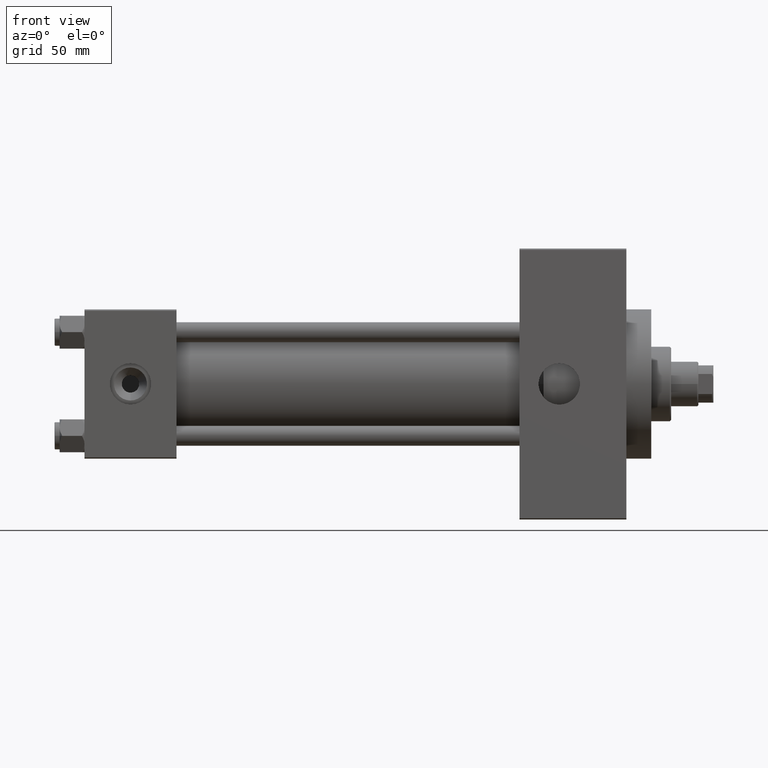
[diagram: clean part render]
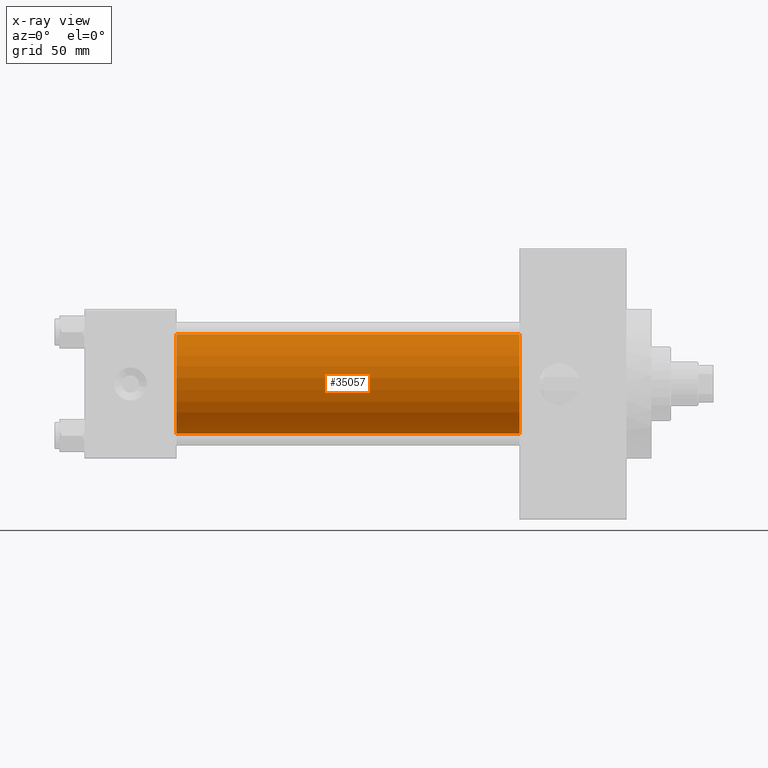
[diagram: x-ray — body ghosted, one internal face saturated and labeled with its STEP entity id]
A machine part, front view, then the same camera in x-ray: the body is ghosted and one INTERNAL B-rep face — a face not visible from any outside direction — is saturated and labeled: STEP entity #35057.
In plain terms, the highlighted cylindrical surface (partial cylindrical patch) has radius 20 mm, axis along (-1, -0, -0).
Its self-contained STEP definition (entity closure, byte-faithful):
#198 = ORIENTED_EDGE ( 'NONE', *, *, #47786, .F. ) ;
#544 = CYLINDRICAL_SURFACE ( 'NONE', #16486, 20.00000000000000000 ) ;
#791 = DIRECTION ( 'NONE',  ( 0.000000000000000000, 0.000000000000000000, -1.000000000000000000 ) ) ;
#1103 = VERTEX_POINT ( 'NONE', #9958 ) ;
#3826 = VERTEX_POINT ( 'NONE', #49047 ) ;
#5043 = CARTESIAN_POINT ( 'NONE',  ( 175.0000000000000284, -2.602085213965210642E-15, 20.00000000000000000 ) ) ;
#5378 = EDGE_CURVE ( 'NONE', #3826, #16292, #42156, .T. ) ;
#5455 = CIRCLE ( 'NONE', #7045, 20.00000000000000000 ) ;
#6551 = EDGE_CURVE ( 'NONE', #16292, #11563, #22927, .T. ) ;
#7045 = AXIS2_PLACEMENT_3D ( 'NONE', #11095, #35109, #791 ) ;
#7145 = CARTESIAN_POINT ( 'NONE',  ( 175.0000000000000284, -1.527916156705042519E-16, -20.00000000000000000 ) ) ;
#9299 = DIRECTION ( 'NONE',  ( -1.000000000000000000, -0.000000000000000000, -0.000000000000000000 ) ) ;
#9551 = LINE ( 'NONE', #5043, #9580 ) ;
#9580 = VECTOR ( 'NONE', #9299, 1000.000000000000000 ) ;
#9958 = CARTESIAN_POINT ( 'NONE',  ( 37.00000000000000000, -2.602085213965210642E-15, 20.00000000000000000 ) ) ;
#10977 = AXIS2_PLACEMENT_3D ( 'NONE', #31725, #39984, #27468 ) ;
#11095 = CARTESIAN_POINT ( 'NONE',  ( 37.00000000000000000, -2.602085213965210642E-15, 0.000000000000000000 ) ) ;
#11563 = VERTEX_POINT ( 'NONE', #34713 ) ;
#12930 = EDGE_CURVE ( 'NONE', #1103, #11563, #5455, .T. ) ;
#15847 = CARTESIAN_POINT ( 'NONE',  ( 175.0000000000000284, -2.602085213965210642E-15, 0.000000000000000000 ) ) ;
#16292 = VERTEX_POINT ( 'NONE', #32534 ) ;
#16486 = AXIS2_PLACEMENT_3D ( 'NONE', #15847, #41617, #31115 ) ;
#16737 = ORIENTED_EDGE ( 'NONE', *, *, #12930, .F. ) ;
#17389 = EDGE_LOOP ( 'NONE', ( #17504, #25142, #16737, #198 ) ) ;
#17504 = ORIENTED_EDGE ( 'NONE', *, *, #5378, .T. ) ;
#22927 = LINE ( 'NONE', #7145, #45371 ) ;
#25142 = ORIENTED_EDGE ( 'NONE', *, *, #6551, .T. ) ;
#27468 = DIRECTION ( 'NONE',  ( 0.000000000000000000, 0.000000000000000000, -1.000000000000000000 ) ) ;
#30858 = FACE_OUTER_BOUND ( 'NONE', #17389, .T. ) ;
#31115 = DIRECTION ( 'NONE',  ( 0.000000000000000000, 0.000000000000000000, 1.000000000000000000 ) ) ;
#31725 = CARTESIAN_POINT ( 'NONE',  ( 175.0000000000000284, -2.602085213965210642E-15, 0.000000000000000000 ) ) ;
#32534 = CARTESIAN_POINT ( 'NONE',  ( 175.0000000000000284, -1.527916156705042519E-16, -20.00000000000000000 ) ) ;
#33951 = DIRECTION ( 'NONE',  ( -1.000000000000000000, -0.000000000000000000, -0.000000000000000000 ) ) ;
#34713 = CARTESIAN_POINT ( 'NONE',  ( 37.00000000000000000, -1.527916156705042519E-16, -20.00000000000000000 ) ) ;
#35057 = ADVANCED_FACE ( 'NONE', ( #30858 ), #544, .F. ) ;
#35109 = DIRECTION ( 'NONE',  ( 1.000000000000000000, 0.000000000000000000, 0.000000000000000000 ) ) ;
#39984 = DIRECTION ( 'NONE',  ( 1.000000000000000000, 0.000000000000000000, 0.000000000000000000 ) ) ;
#41617 = DIRECTION ( 'NONE',  ( -1.000000000000000000, -0.000000000000000000, -0.000000000000000000 ) ) ;
#42156 = CIRCLE ( 'NONE', #10977, 20.00000000000000000 ) ;
#45371 = VECTOR ( 'NONE', #33951, 1000.000000000000000 ) ;
#47786 = EDGE_CURVE ( 'NONE', #3826, #1103, #9551, .T. ) ;
#49047 = CARTESIAN_POINT ( 'NONE',  ( 175.0000000000000284, -2.602085213965210642E-15, 20.00000000000000000 ) ) ;